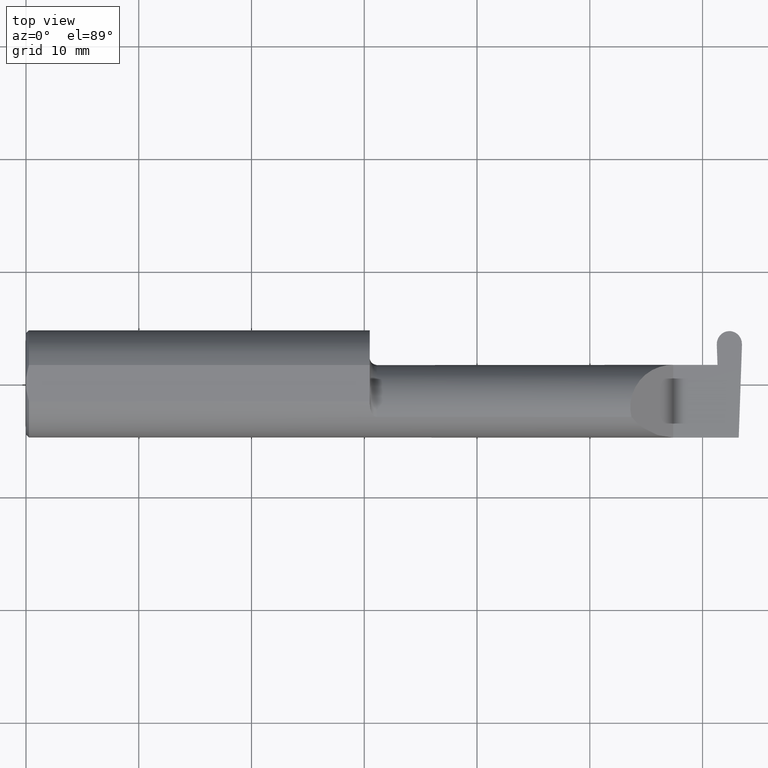
[diagram: clean part render]
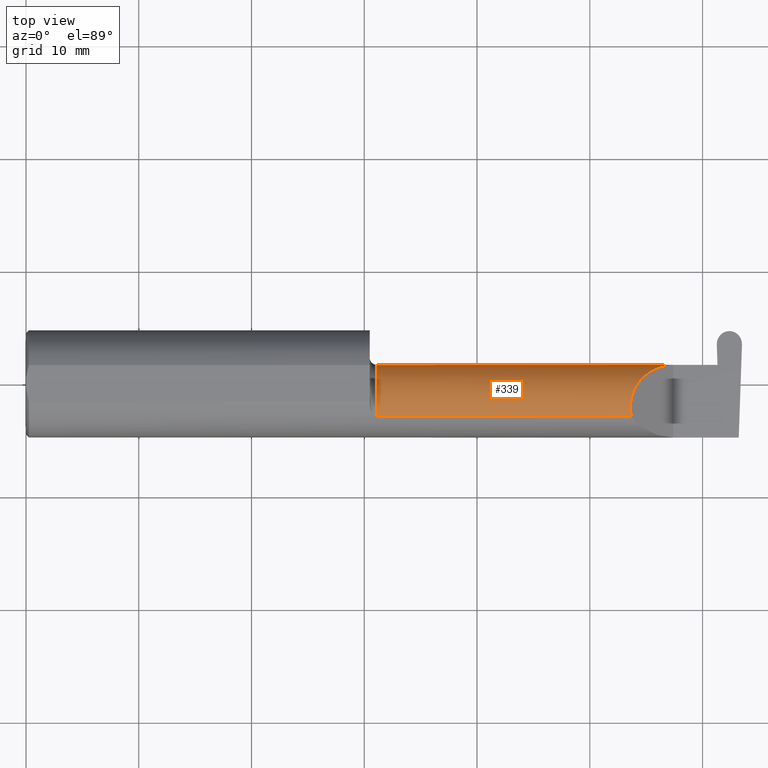
[diagram: same view with one face highlighted and labeled with its STEP entity id]
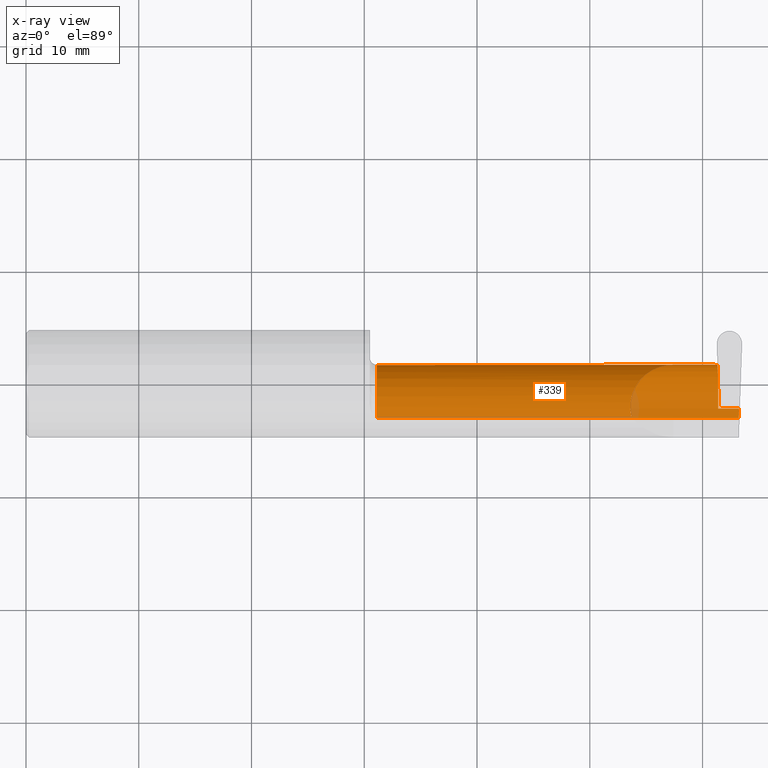
[diagram: x-ray of the same camera — body ghosted, the highlighted face saturated]
A machine part, top view. The second image highlights one B-rep face of the part: STEP entity #339.
The next image is the same camera in x-ray: the body ghosted, the highlighted face saturated — about 3% of this face is hidden behind the body in this view.
In plain terms, the highlighted cylindrical surface (partial cylindrical patch) has radius 3.81 mm, axis along (-1, -0, -0).
Its self-contained STEP definition (entity closure, byte-faithful):
#10 = CARTESIAN_POINT ( 'NONE',  ( 2.414454177608814867, 0.06655862405286415429, -0.005234924505383332580 ) ) ;
#22 = CARTESIAN_POINT ( 'NONE',  ( 2.113883229301068756, -0.1172600179964011363, 0.1461167706989299764 ) ) ;
#39 = VERTEX_POINT ( 'NONE', #464 ) ;
#40 = CARTESIAN_POINT ( 'NONE',  ( 2.489588163846105484, -0.08334999999999995191, -0.1500000000000000500 ) ) ;
#43 = EDGE_CURVE ( 'NONE', #582, #176, #600, .T. ) ;
#49 = ORIENTED_EDGE ( 'NONE', *, *, #267, .F. ) ;
#66 = DIRECTION ( 'NONE',  ( -1.000000000000000000, -8.453855317547640226E-17, -0.000000000000000000 ) ) ;
#67 = EDGE_CURVE ( 'NONE', #102, #363, #702, .T. ) ;
#68 = VERTEX_POINT ( 'NONE', #352 ) ;
#70 = DIRECTION ( 'NONE',  ( -1.000000000000000000, -8.453855317547640226E-17, -0.000000000000000000 ) ) ;
#76 = CARTESIAN_POINT ( 'NONE',  ( 2.405177986947488300, 0.06658908270190946888, -0.003489949670251385645 ) ) ;
#80 = ORIENTED_EDGE ( 'NONE', *, *, #441, .F. ) ;
#85 = LINE ( 'NONE', #360, #172 ) ;
#93 = DIRECTION ( 'NONE',  ( 1.000000000000000000, 8.453855317547640226E-17, 0.000000000000000000 ) ) ;
#100 = DIRECTION ( 'NONE',  ( 1.000000000000000000, 8.453855317547640226E-17, 0.000000000000000000 ) ) ;
#101 = CARTESIAN_POINT ( 'NONE',  ( 1.818402845000000045, -0.1172600179964007477, 0.1461167706989302817 ) ) ;
#102 = VERTEX_POINT ( 'NONE', #617 ) ;
#104 = CARTESIAN_POINT ( 'NONE',  ( 1.199999999999999956, -0.08335000000000007681, 0.000000000000000000 ) ) ;
#121 = LINE ( 'NONE', #508, #633 ) ;
#136 = CARTESIAN_POINT ( 'NONE',  ( 2.417117327835069940, -0.08334999999999997966, -0.1499999999999999944 ) ) ;
#143 = ORIENTED_EDGE ( 'NONE', *, *, #67, .F. ) ;
#167 = LINE ( 'NONE', #322, #397 ) ;
#171 = ORIENTED_EDGE ( 'NONE', *, *, #293, .T. ) ;
#172 = VECTOR ( 'NONE', #100, 39.37007874015748143 ) ;
#174 = VECTOR ( 'NONE', #93, 39.37007874015748143 ) ;
#176 = VERTEX_POINT ( 'NONE', #575 ) ;
#178 = CARTESIAN_POINT ( 'NONE',  ( 1.225000000000000089, -0.08335000000000007681, 0.000000000000000000 ) ) ;
#181 = EDGE_CURVE ( 'NONE', #582, #468, #366, .T. ) ;
#195 = CARTESIAN_POINT ( 'NONE',  ( 2.405208445596533462, 0.06661954135095470020, -0.001744974835125692606 ) ) ;
#197 = AXIS2_PLACEMENT_3D ( 'NONE', #104, #545, #602 ) ;
#203 = CARTESIAN_POINT ( 'NONE',  ( 2.260000000000000231, 0.06664999999999994540, 1.592040838891559588E-16 ) ) ;
#219 = DIRECTION ( 'NONE',  ( -1.000000000000000000, -8.453855317547640226E-17, -0.000000000000000000 ) ) ;
#228 = CARTESIAN_POINT ( 'NONE',  ( 2.488471823259917226, -0.1172600179964006922, -0.1461167706989302817 ) ) ;
#232 = CARTESIAN_POINT ( 'NONE',  ( 2.488815404197634251, -0.1061291577212409021, -0.1486999626928445506 ) ) ;
#241 = ORIENTED_EDGE ( 'NONE', *, *, #308, .F. ) ;
#242 = VERTEX_POINT ( 'NONE', #499 ) ;
#246 = AXIS2_PLACEMENT_3D ( 'NONE', #178, #70, #632 ) ;
#267 = EDGE_CURVE ( 'NONE', #68, #535, #357, .T. ) ;
#282 = ORIENTED_EDGE ( 'NONE', *, *, #592, .T. ) ;
#293 = EDGE_CURVE ( 'NONE', #68, #176, #167, .T. ) ;
#306 = CARTESIAN_POINT ( 'NONE',  ( 2.260000000000000231, 0.06664999999999994540, 1.592040838891559588E-16 ) ) ;
#308 = EDGE_CURVE ( 'NONE', #363, #39, #439, .T. ) ;
#310 = CARTESIAN_POINT ( 'NONE',  ( 2.155331797197862720, 0.06664999999999991764, 0.1046682028021363176 ) ) ;
#314 = CARTESIAN_POINT ( 'NONE',  ( 1.225000000000000089, -0.1172600179964007477, 0.1461167706989301984 ) ) ;
#317 = CARTESIAN_POINT ( 'NONE',  ( 2.113883229301068756, -0.1172600179964011363, 0.1461167706989299764 ) ) ;
#319 = B_SPLINE_CURVE_WITH_KNOTS ( 'NONE', 3,
 ( #347, #76, #195, #431 ),
 .UNSPECIFIED., .F., .F.,
 ( 4, 4 ),
 ( 0.000000000000000000, 1.000000000000000000 ),
 .UNSPECIFIED. ) ;
#322 = CARTESIAN_POINT ( 'NONE',  ( 1.818402845000000045, -0.1172600179964007477, -0.1461167706989302817 ) ) ;
#339 = ADVANCED_FACE ( 'NONE', ( #599 ), #595, .T. ) ;
#347 = CARTESIAN_POINT ( 'NONE',  ( 2.405147528298442694, 0.06655862405286425143, -0.005234924505377073697 ) ) ;
#352 = CARTESIAN_POINT ( 'NONE',  ( 2.488471823259917226, -0.1172600179964006922, -0.1461167706989302817 ) ) ;
#356 = CARTESIAN_POINT ( 'NONE',  ( 2.415998328610626800, 0.06357628547474553082, -0.09063792740366206913 ) ) ;
#357 =( BOUNDED_CURVE ( )  B_SPLINE_CURVE ( 3, ( #228, #232, #496, #452 ),
 .UNSPECIFIED., .F., .F. ) 
 B_SPLINE_CURVE_WITH_KNOTS ( ( 4, 4 ),
 ( 0.8789888184544053518, 1.107026853503850328 ),
 .UNSPECIFIED. ) 
 CURVE ( )  GEOMETRIC_REPRESENTATION_ITEM ( )  RATIONAL_B_SPLINE_CURVE ( ( 1.000000000000000000, 0.9956712472009929815, 0.9956712472009929815, 1.000000000000000000 ) ) 
 REPRESENTATION_ITEM ( '' )  );
#360 = CARTESIAN_POINT ( 'NONE',  ( 1.199999999999999956, 0.06664999999999984825, 1.592040838891559588E-16 ) ) ;
#363 = VERTEX_POINT ( 'NONE', #10 ) ;
#366 = LINE ( 'NONE', #101, #174 ) ;
#391 = CARTESIAN_POINT ( 'NONE',  ( 1.199999999999999956, 0.06655862405286439021, -0.005234924505370296133 ) ) ;
#397 = VECTOR ( 'NONE', #219, 39.37007874015748143 ) ;
#431 = CARTESIAN_POINT ( 'NONE',  ( 2.405238904245578624, 0.06664999999999991764, 0.000000000000000000 ) ) ;
#439 = LINE ( 'NONE', #391, #610 ) ;
#441 = EDGE_CURVE ( 'NONE', #535, #102, #121, .T. ) ;
#452 = CARTESIAN_POINT ( 'NONE',  ( 2.489588163846105484, -0.08334999999999995191, -0.1500000000000000500 ) ) ;
#453 = EDGE_LOOP ( 'NONE', ( #171, #627, #502, #282, #573, #664, #241, #143, #80, #49 ) ) ;
#462 = CARTESIAN_POINT ( 'NONE',  ( 2.414454177608814867, 0.06655862405286415429, -0.005234924505383332580 ) ) ;
#464 = CARTESIAN_POINT ( 'NONE',  ( 2.405147528298442694, 0.06655862405286425143, -0.005234924505377073697 ) ) ;
#468 = VERTEX_POINT ( 'NONE', #22 ) ;
#496 = CARTESIAN_POINT ( 'NONE',  ( 2.489189135516857831, -0.09477667630339413340, -0.1499999999999999389 ) ) ;
#498 = EDGE_CURVE ( 'NONE', #39, #242, #319, .T. ) ;
#499 = CARTESIAN_POINT ( 'NONE',  ( 2.405238904245578624, 0.06664999999999991764, 0.000000000000000000 ) ) ;
#502 = ORIENTED_EDGE ( 'NONE', *, *, #181, .T. ) ;
#504 = CARTESIAN_POINT ( 'NONE',  ( 2.417090374579075274, 0.002105059811797773805, -0.1499999999999999944 ) ) ;
#508 = CARTESIAN_POINT ( 'NONE',  ( 2.733184360054362383, -0.08334999999999995191, -0.1500000000000000500 ) ) ;
#516 = DIRECTION ( 'NONE',  ( -1.000000000000000000, -0.000000000000000000, -0.000000000000000000 ) ) ;
#520 = VERTEX_POINT ( 'NONE', #203 ) ;
#535 = VERTEX_POINT ( 'NONE', #40 ) ;
#545 = DIRECTION ( 'NONE',  ( -1.000000000000000000, -8.453855317547640226E-17, -0.000000000000000000 ) ) ;
#568 = EDGE_CURVE ( 'NONE', #520, #242, #85, .T. ) ;
#573 = ORIENTED_EDGE ( 'NONE', *, *, #568, .T. ) ;
#575 = CARTESIAN_POINT ( 'NONE',  ( 1.225000000000000089, -0.1172600179964007339, -0.1461167706989301984 ) ) ;
#582 = VERTEX_POINT ( 'NONE', #314 ) ;
#592 = EDGE_CURVE ( 'NONE', #468, #520, #697, .T. ) ;
#595 = CYLINDRICAL_SURFACE ( 'NONE', #197, 0.1499999999999999667 ) ;
#599 = FACE_OUTER_BOUND ( 'NONE', #453, .T. ) ;
#600 = CIRCLE ( 'NONE', #246, 0.1499999999999999112 ) ;
#602 = DIRECTION ( 'NONE',  ( 0.000000000000000000, -1.000000000000000000, 0.000000000000000000 ) ) ;
#610 = VECTOR ( 'NONE', #66, 39.37007874015748143 ) ;
#617 = CARTESIAN_POINT ( 'NONE',  ( 2.417117327835069940, -0.08334999999999997966, -0.1499999999999999944 ) ) ;
#627 = ORIENTED_EDGE ( 'NONE', *, *, #43, .F. ) ;
#632 = DIRECTION ( 'NONE',  ( 0.000000000000000000, -1.000000000000000000, 0.000000000000000000 ) ) ;
#633 = VECTOR ( 'NONE', #516, 39.37007874015748143 ) ;
#648 = CARTESIAN_POINT ( 'NONE',  ( 2.090221225029925467, -0.01530148607434202168, 0.1697787749700729043 ) ) ;
#664 = ORIENTED_EDGE ( 'NONE', *, *, #498, .F. ) ;
#697 =( BOUNDED_CURVE ( )  B_SPLINE_CURVE ( 3, ( #317, #648, #310, #306 ),
 .UNSPECIFIED., .F., .T. ) 
 B_SPLINE_CURVE_WITH_KNOTS ( ( 4, 4 ),
 ( 6.055147272130138703, 7.853981633974482790 ),
 .UNSPECIFIED. ) 
 CURVE ( )  GEOMETRIC_REPRESENTATION_ITEM ( )  RATIONAL_B_SPLINE_CURVE ( ( 1.000000000000000000, 0.7480442670255259552, 0.7480442670255259552, 1.000000000000000000 ) ) 
 REPRESENTATION_ITEM ( '' )  );
#702 =( BOUNDED_CURVE ( )  B_SPLINE_CURVE ( 3, ( #136, #504, #356, #462 ),
 .UNSPECIFIED., .F., .F. ) 
 B_SPLINE_CURVE_WITH_KNOTS ( ( 4, 4 ),
 ( 3.159045946109731773, 4.694935687864687068 ),
 .UNSPECIFIED. ) 
 CURVE ( )  GEOMETRIC_REPRESENTATION_ITEM ( )  RATIONAL_B_SPLINE_CURVE ( ( 1.000000000000000000, 0.8128932002257800438, 0.8128932002257800438, 1.000000000000000000 ) ) 
 REPRESENTATION_ITEM ( '' )  );